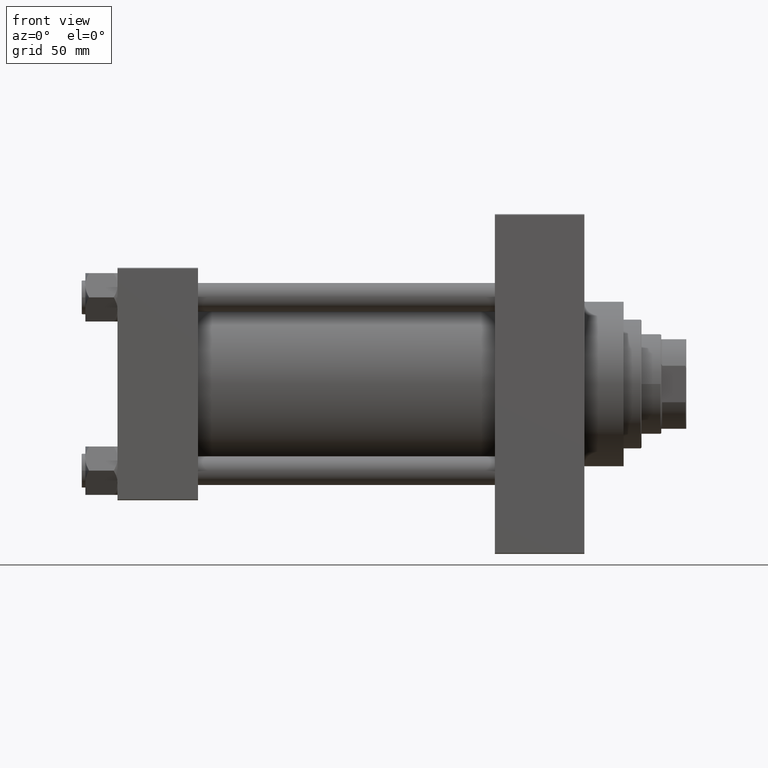
[diagram: clean part render]
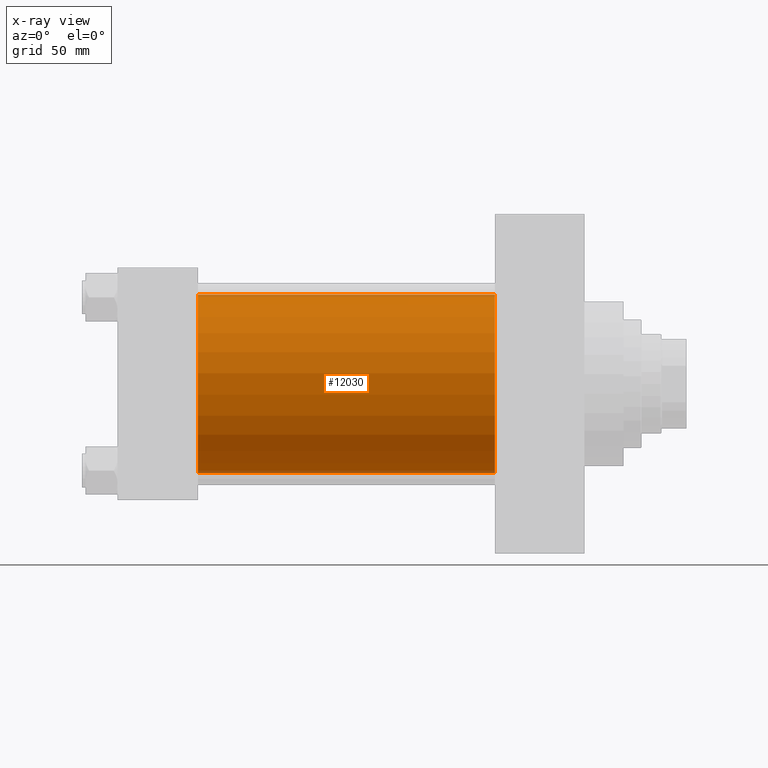
[diagram: x-ray — body ghosted, one internal face saturated and labeled with its STEP entity id]
A machine part, front view, then the same camera in x-ray: the body is ghosted and one INTERNAL B-rep face — a face not visible from any outside direction — is saturated and labeled: STEP entity #12030.
In plain terms, the highlighted cylindrical surface (partial cylindrical patch) has radius 50 mm, axis along (-1, -0, -0).
Its self-contained STEP definition (entity closure, byte-faithful):
#2384 = CARTESIAN_POINT ( 'NONE',  ( 211.0000000000000284, -2.602085213965210642E-15, 50.00000000000000000 ) ) ;
#2539 = LINE ( 'NONE', #31050, #10683 ) ;
#2997 = CYLINDRICAL_SURFACE ( 'NONE', #38450, 50.00000000000000000 ) ;
#3495 = ORIENTED_EDGE ( 'NONE', *, *, #14187, .T. ) ;
#4918 = VERTEX_POINT ( 'NONE', #24051 ) ;
#5108 = EDGE_LOOP ( 'NONE', ( #3495, #13973, #17281, #30410 ) ) ;
#9890 = CARTESIAN_POINT ( 'NONE',  ( 211.0000000000000284, 3.521148781771555838E-15, -50.00000000000000000 ) ) ;
#10683 = VECTOR ( 'NONE', #17273, 1000.000000000000000 ) ;
#12030 = ADVANCED_FACE ( 'NONE', ( #43792 ), #2997, .F. ) ;
#12829 = EDGE_CURVE ( 'NONE', #32421, #4918, #2539, .T. ) ;
#13973 = ORIENTED_EDGE ( 'NONE', *, *, #12829, .T. ) ;
#14187 = EDGE_CURVE ( 'NONE', #30580, #32421, #30679, .T. ) ;
#17273 = DIRECTION ( 'NONE',  ( -1.000000000000000000, -0.000000000000000000, -0.000000000000000000 ) ) ;
#17281 = ORIENTED_EDGE ( 'NONE', *, *, #35484, .F. ) ;
#17498 = DIRECTION ( 'NONE',  ( 0.000000000000000000, 0.000000000000000000, 1.000000000000000000 ) ) ;
#20450 = CARTESIAN_POINT ( 'NONE',  ( 45.00000000000000000, -2.602085213965210642E-15, 0.000000000000000000 ) ) ;
#20840 = CIRCLE ( 'NONE', #34686, 50.00000000000000000 ) ;
#21216 = LINE ( 'NONE', #2384, #28046 ) ;
#22581 = DIRECTION ( 'NONE',  ( 1.000000000000000000, 0.000000000000000000, 0.000000000000000000 ) ) ;
#24051 = CARTESIAN_POINT ( 'NONE',  ( 45.00000000000000000, 3.521148781771555838E-15, -50.00000000000000000 ) ) ;
#26200 = CARTESIAN_POINT ( 'NONE',  ( 211.0000000000000284, -2.602085213965210642E-15, 0.000000000000000000 ) ) ;
#26828 = AXIS2_PLACEMENT_3D ( 'NONE', #26200, #22581, #43060 ) ;
#28046 = VECTOR ( 'NONE', #31615, 1000.000000000000000 ) ;
#28893 = CARTESIAN_POINT ( 'NONE',  ( 211.0000000000000284, -2.602085213965210642E-15, 50.00000000000000000 ) ) ;
#30410 = ORIENTED_EDGE ( 'NONE', *, *, #47194, .F. ) ;
#30580 = VERTEX_POINT ( 'NONE', #28893 ) ;
#30610 = VERTEX_POINT ( 'NONE', #44549 ) ;
#30679 = CIRCLE ( 'NONE', #26828, 50.00000000000000000 ) ;
#31050 = CARTESIAN_POINT ( 'NONE',  ( 211.0000000000000284, 3.521148781771555838E-15, -50.00000000000000000 ) ) ;
#31615 = DIRECTION ( 'NONE',  ( -1.000000000000000000, -0.000000000000000000, -0.000000000000000000 ) ) ;
#32421 = VERTEX_POINT ( 'NONE', #9890 ) ;
#34686 = AXIS2_PLACEMENT_3D ( 'NONE', #20450, #34695, #46288 ) ;
#34695 = DIRECTION ( 'NONE',  ( 1.000000000000000000, 0.000000000000000000, 0.000000000000000000 ) ) ;
#35484 = EDGE_CURVE ( 'NONE', #30610, #4918, #20840, .T. ) ;
#36325 = CARTESIAN_POINT ( 'NONE',  ( 211.0000000000000284, -2.602085213965210642E-15, 0.000000000000000000 ) ) ;
#38450 = AXIS2_PLACEMENT_3D ( 'NONE', #36325, #44038, #17498 ) ;
#43060 = DIRECTION ( 'NONE',  ( 0.000000000000000000, 0.000000000000000000, -1.000000000000000000 ) ) ;
#43792 = FACE_OUTER_BOUND ( 'NONE', #5108, .T. ) ;
#44038 = DIRECTION ( 'NONE',  ( -1.000000000000000000, -0.000000000000000000, -0.000000000000000000 ) ) ;
#44549 = CARTESIAN_POINT ( 'NONE',  ( 45.00000000000000000, -2.602085213965210642E-15, 50.00000000000000000 ) ) ;
#46288 = DIRECTION ( 'NONE',  ( 0.000000000000000000, 0.000000000000000000, -1.000000000000000000 ) ) ;
#47194 = EDGE_CURVE ( 'NONE', #30580, #30610, #21216, .T. ) ;